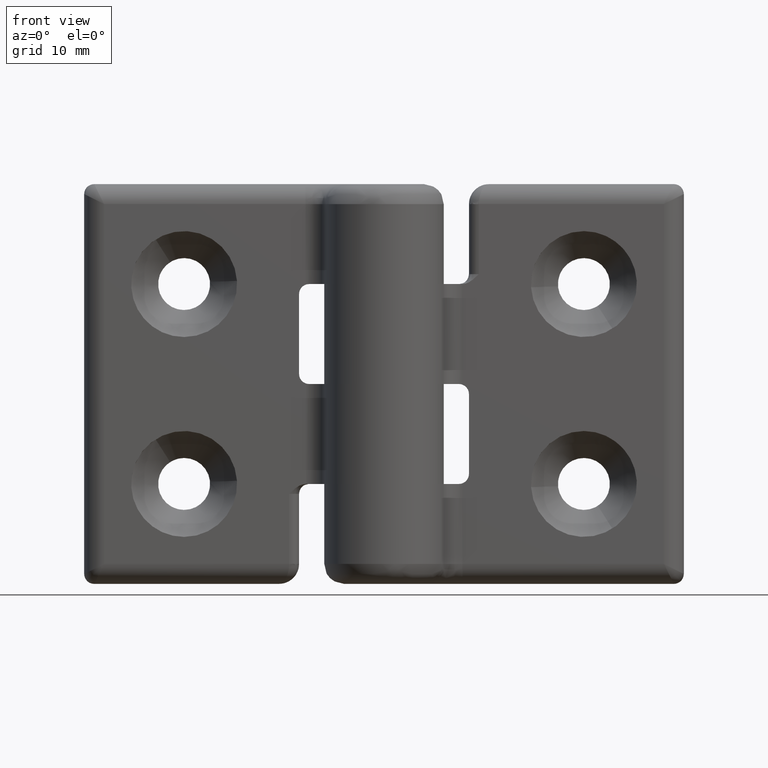
[diagram: clean part render]
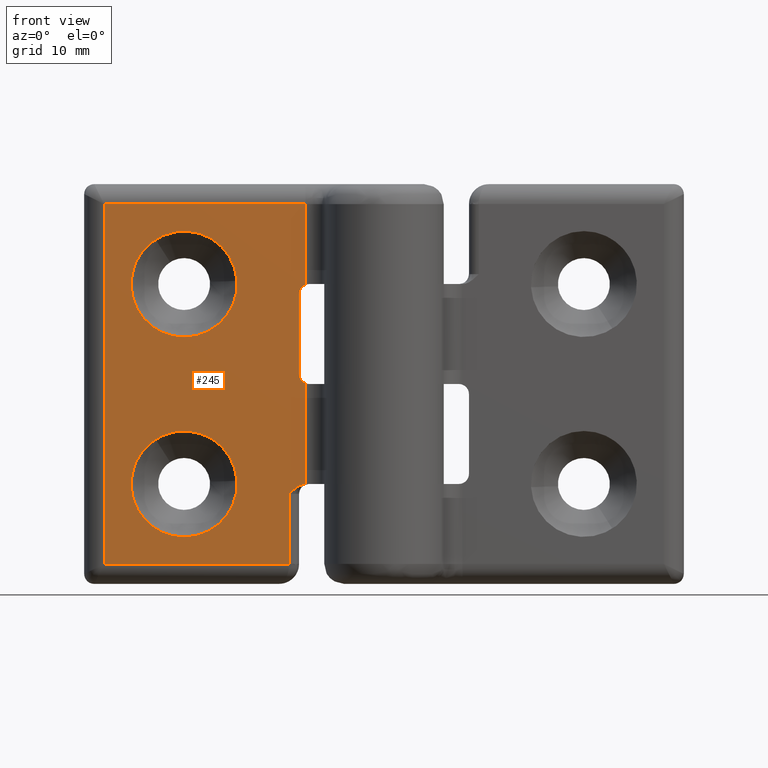
[diagram: same view with one face highlighted and labeled with its STEP entity id]
A machine part, front view. The second image highlights one B-rep face of the part: STEP entity #245.
In plain terms, the highlighted planar face has unit normal (0, -1, 0).
Its self-contained STEP definition (entity closure, byte-faithful):
#245=ADVANCED_FACE('',(#1053,#1054,#1055),#1052,.T.);
#1052=PLANE('',#1882);
#1053=FACE_OUTER_BOUND('',#1883,.T.);
#1054=FACE_BOUND('',#1884,.T.);
#1055=FACE_BOUND('',#1885,.T.);
#1879=CARTESIAN_POINT('',(5.84392850503E+00,5.00000000000E-01,4.16000000000E+01));
#1880=DIRECTION('',(0.00000000000E+00,-1.00000000000E+00,0.00000000000E+00));
#1881=DIRECTION('',(0.00000000000E+00,0.00000000000E+00,-1.00000000000E+00));
#1882=AXIS2_PLACEMENT_3D('',#1879,#1880,#1881);
#1883=EDGE_LOOP('',(#2388,#2389,#2390,#2391,#2392,#2393,#2394,#2395,#2396,#2397));
#1884=EDGE_LOOP('',(#2398,#2399,#2400));
#1885=EDGE_LOOP('',(#2401,#2402,#2403));
#2388=ORIENTED_EDGE('',*,*,#2768,.T.);
#2389=ORIENTED_EDGE('',*,*,#2724,.T.);
#2390=ORIENTED_EDGE('',*,*,#2729,.T.);
#2391=ORIENTED_EDGE('',*,*,#2734,.T.);
#2392=ORIENTED_EDGE('',*,*,#2765,.T.);
#2393=ORIENTED_EDGE('',*,*,#2757,.T.);
#2394=ORIENTED_EDGE('',*,*,#2773,.T.);
#2395=ORIENTED_EDGE('',*,*,#2751,.T.);
#2396=ORIENTED_EDGE('',*,*,#2779,.F.);
#2397=ORIENTED_EDGE('',*,*,#2752,.T.);
#2398=ORIENTED_EDGE('',*,*,#2794,.T.);
#2399=ORIENTED_EDGE('',*,*,#2795,.T.);
#2400=ORIENTED_EDGE('',*,*,#2796,.T.);
#2401=ORIENTED_EDGE('',*,*,#2797,.T.);
#2402=ORIENTED_EDGE('',*,*,#2798,.T.);
#2403=ORIENTED_EDGE('',*,*,#2799,.T.);
#2724=EDGE_CURVE('',#3849,#3876,#3883,.T.);
#2729=EDGE_CURVE('',#3876,#3909,#3916,.T.);
#2734=EDGE_CURVE('',#3909,#3942,#3949,.T.);
#2751=EDGE_CURVE('',#4035,#4056,#4063,.T.);
#2752=EDGE_CURVE('',#4069,#4070,#4071,.T.);
#2757=EDGE_CURVE('',#4104,#4105,#4106,.T.);
#2765=EDGE_CURVE('',#3942,#4104,#4159,.T.);
#2768=EDGE_CURVE('',#4070,#3849,#4178,.T.);
#2773=EDGE_CURVE('',#4105,#4035,#4210,.T.);
#2779=EDGE_CURVE('',#4069,#4056,#4248,.T.);
#2794=EDGE_CURVE('',#4346,#4347,#4348,.T.);
#2795=EDGE_CURVE('',#4347,#4354,#4355,.T.);
#2796=EDGE_CURVE('',#4354,#4346,#4361,.T.);
#2797=EDGE_CURVE('',#4367,#4368,#4369,.T.);
#2798=EDGE_CURVE('',#4368,#4375,#4376,.T.);
#2799=EDGE_CURVE('',#4375,#4367,#4382,.T.);
#3849=VERTEX_POINT('',#5220);
#3876=VERTEX_POINT('',#5239);
#3883=LINE('',#5243,#5244);
#3909=VERTEX_POINT('',#5258);
#3916=LINE('',#5264,#5265);
#3942=VERTEX_POINT('',#5279);
#3949=LINE('',#5285,#5286);
#4035=VERTEX_POINT('',#5338);
#4056=VERTEX_POINT('',#5356);
#4063=CIRCLE('',#5363,1.00000000000E+00);
#4069=VERTEX_POINT('',#5364);
#4070=VERTEX_POINT('',#5365);
#4071=CIRCLE('',#5369,1.00000000000E+00);
#4104=VERTEX_POINT('',#5391);
#4105=VERTEX_POINT('',#5392);
#4106=(BOUNDED_CURVE() B_SPLINE_CURVE(3,(#5393,#5394,#5395,#5396,#5397,#5398,#5399,#5400,#5401,#5402,#5403,#5404,#5405,#5406,#5407,#5408,#5409),.UNSPECIFIED.,.F.,.F.) B_SPLINE_CURVE_WITH_KNOTS((4,2,1,2,2,2,2,2,4),(0.00000000000E+00,6.25000000000E-02,1.25000000000E-01,2.50000000000E-01,5.00000000000E-01,6.25000000000E-01,7.50000000000E-01,8.75000000000E-01,1.00000000000E+00),.UNSPECIFIED.) CURVE() GEOMETRIC_REPRESENTATION_ITEM() RATIONAL_B_SPLINE_CURVE((1.00000000000E+00,1.00000000000E+00,1.00000000000E+00,1.00000000000E+00,1.00000000000E+00,1.00000000000E+00,1.00000000000E+00,1.00000000000E+00,1.00000000000E+00,1.00000000000E+00,1.00000000000E+00,1.00000000000E+00,1.00000000000E+00,1.00000000000E+00,1.00000000000E+00,1.00000000000E+00,1.00000000000E+00)) REPRESENTATION_ITEM('') );
#4159=LINE('',#5441,#5442);
#4178=LINE('',#5451,#5452);
#4210=LINE('',#5471,#5472);
#4248=LINE('',#5492,#5493);
#4346=VERTEX_POINT('',#5551);
#4347=VERTEX_POINT('',#5552);
#4348=CIRCLE('',#5556,5.30000000049E+00);
#4354=VERTEX_POINT('',#5557);
#4355=CIRCLE('',#5561,5.30000000049E+00);
#4361=CIRCLE('',#5565,5.30000000049E+00);
#4367=VERTEX_POINT('',#5566);
#4368=VERTEX_POINT('',#5567);
#4369=CIRCLE('',#5571,5.30000000049E+00);
#4375=VERTEX_POINT('',#5572);
#4376=CIRCLE('',#5576,5.30000000049E+00);
#4382=CIRCLE('',#5580,5.30000000049E+00);
#5220=CARTESIAN_POINT('',(7.85811682275E+00,5.00000000000E-01,2.00000000000E+00));
#5239=CARTESIAN_POINT('',(2.80000000000E+01,5.00000000000E-01,2.00000000000E+00));
#5243=CARTESIAN_POINT('',(7.85811682275E+00,5.00000000000E-01,2.00000000000E+00));
#5244=VECTOR('',#5245,2.01418831772E+01);
#5245=DIRECTION('',(1.00000000000E+00,0.00000000000E+00,0.00000000000E+00));
#5258=CARTESIAN_POINT('',(2.80000000000E+01,5.00000000000E-01,3.80000000000E+01));
#5264=CARTESIAN_POINT('',(2.80000000000E+01,5.00000000000E-01,2.00000000000E+00));
#5265=VECTOR('',#5266,3.60000000000E+01);
#5266=DIRECTION('',(0.00000000000E+00,0.00000000000E+00,1.00000000000E+00));
#5279=CARTESIAN_POINT('',(9.50000000000E+00,5.00000000000E-01,3.80000000000E+01));
#5285=CARTESIAN_POINT('',(2.80000000000E+01,5.00000000000E-01,3.80000000000E+01));
#5286=VECTOR('',#5287,1.85000000000E+01);
#5287=DIRECTION('',(-1.00000000000E+00,0.00000000000E+00,0.00000000000E+00));
#5338=CARTESIAN_POINT('',(7.85811682275E+00,5.00000000000E-01,1.99336767863E+01));
#5356=CARTESIAN_POINT('',(8.50000000000E+00,5.00000000000E-01,1.90000000000E+01));
#5360=CARTESIAN_POINT('',(7.50000000000E+00,5.00000000000E-01,1.90000000000E+01));
#5361=DIRECTION('',(1.16452780915E-13,1.00000000000E+00,8.00691379277E-14));
#5362=DIRECTION('',(-3.58116822751E-01,1.16462395283E-13,-9.33676786293E-01));
#5363=AXIS2_PLACEMENT_3D('',#5360,#5361,#5362);
#5364=CARTESIAN_POINT('',(8.50000000000E+00,5.00000000000E-01,1.10000000000E+01));
#5365=CARTESIAN_POINT('',(7.85811682275E+00,5.00000000000E-01,1.00663232137E+01));
#5366=CARTESIAN_POINT('',(7.50000000000E+00,5.00000000000E-01,1.10000000000E+01));
#5367=DIRECTION('',(1.16240350678E-13,1.00000000000E+00,-8.00551529641E-14));
#5368=DIRECTION('',(-1.00000000000E+00,1.16240350678E-13,3.19744231092E-14));
#5369=AXIS2_PLACEMENT_3D('',#5366,#5367,#5368);
#5391=CARTESIAN_POINT('',(9.50000000000E+00,5.00000000000E-01,3.10000000000E+01));
#5392=CARTESIAN_POINT('',(7.85811682275E+00,5.00000000000E-01,3.00030122164E+01));
#5393=CARTESIAN_POINT('',(9.50000000000E+00,5.00000000000E-01,3.10000000000E+01));
#5394=CARTESIAN_POINT('',(9.47113588199E+00,5.00000000000E-01,3.09711360264E+01));
#5395=CARTESIAN_POINT('',(9.44200394949E+00,5.00000000000E-01,3.09420039162E+01));
#5396=CARTESIAN_POINT('',(9.38382580234E+00,5.00000000000E-01,3.08841551196E+01));
#5397=CARTESIAN_POINT('',(9.29631907930E+00,5.00000000000E-01,3.07976367281E+01));
#5398=CARTESIAN_POINT('',(9.20737697397E+00,5.00000000000E-01,3.07126454211E+01));
#5399=CARTESIAN_POINT('',(9.02566721858E+00,5.00000000000E-01,3.05467327541E+01));
#5400=CARTESIAN_POINT('',(8.89896371929E+00,5.00000000000E-01,3.04412951735E+01));
#5401=CARTESIAN_POINT('',(8.69772431240E+00,5.00000000000E-01,3.03024122386E+01));
#5402=CARTESIAN_POINT('',(8.62870179747E+00,5.00000000000E-01,3.02592258336E+01));
#5403=CARTESIAN_POINT('',(8.48580937934E+00,5.00000000000E-01,3.01806077626E+01));
#5404=CARTESIAN_POINT('',(8.41173293989E+00,5.00000000000E-01,3.01450778361E+01));
#5405=CARTESIAN_POINT('',(8.25845491519E+00,5.00000000000E-01,3.00840336265E+01));
#5406=CARTESIAN_POINT('',(8.18050260468E+00,5.00000000000E-01,3.00589958408E+01));
#5407=CARTESIAN_POINT('',(8.02164708148E+00,5.00000000000E-01,3.00212432056E+01));
#5408=CARTESIAN_POINT('',(7.94075008985E+00,5.00000000000E-01,3.00085023771E+01));
#5409=CARTESIAN_POINT('',(7.85811682275E+00,5.00000000000E-01,3.00030122164E+01));
#5441=CARTESIAN_POINT('',(9.50000000000E+00,5.00000000000E-01,3.80000000000E+01));
#5442=VECTOR('',#5443,7.00000000000E+00);
#5443=DIRECTION('',(0.00000000000E+00,0.00000000000E+00,-1.00000000000E+00));
#5451=CARTESIAN_POINT('',(7.85811682275E+00,5.00000000000E-01,1.00663232137E+01));
#5452=VECTOR('',#5453,8.06632321371E+00);
#5453=DIRECTION('',(0.00000000000E+00,0.00000000000E+00,-1.00000000000E+00));
#5471=CARTESIAN_POINT('',(7.85811682275E+00,5.00000000000E-01,3.00030122164E+01));
#5472=VECTOR('',#5473,1.00693354301E+01);
#5473=DIRECTION('',(0.00000000000E+00,0.00000000000E+00,-1.00000000000E+00));
#5492=CARTESIAN_POINT('',(8.50000000000E+00,5.00000000000E-01,1.10000000000E+01));
#5493=VECTOR('',#5494,8.00000000000E+00);
#5494=DIRECTION('',(0.00000000000E+00,0.00000000000E+00,1.00000000000E+00));
#5551=CARTESIAN_POINT('',(2.00000000000E+01,5.00000000000E-01,1.53000000009E+01));
#5552=CARTESIAN_POINT('',(2.52900672113E+01,5.00000000000E-01,1.03243283990E+01));
#5553=CARTESIAN_POINT('',(2.00000000005E+01,5.00000000000E-01,1.00000000004E+01));
#5554=DIRECTION('',(0.00000000000E+00,1.00000000000E+00,0.00000000000E+00));
#5555=DIRECTION('',(-8.78363210340E-11,-0.00000000000E+00,1.00000000000E+00));
#5556=AXIS2_PLACEMENT_3D('',#5553,#5554,#5555);
#5557=CARTESIAN_POINT('',(1.47098855681E+01,5.00000000000E-01,9.67644274542E+00));
#5558=CARTESIAN_POINT('',(2.00000000005E+01,5.00000000000E-01,1.00000000004E+01));
#5559=DIRECTION('',(0.00000000000E+00,1.00000000000E+00,0.00000000000E+00));
#5560=DIRECTION('',(-8.78363210340E-11,-0.00000000000E+00,1.00000000000E+00));
#5561=AXIS2_PLACEMENT_3D('',#5558,#5559,#5560);
#5562=CARTESIAN_POINT('',(2.00000000005E+01,5.00000000000E-01,1.00000000004E+01));
#5563=DIRECTION('',(0.00000000000E+00,1.00000000000E+00,0.00000000000E+00));
#5564=DIRECTION('',(-8.78363210340E-11,-0.00000000000E+00,1.00000000000E+00));
#5565=AXIS2_PLACEMENT_3D('',#5562,#5563,#5564);
#5566=CARTESIAN_POINT('',(2.00000000000E+01,5.00000000000E-01,3.53000000009E+01));
#5567=CARTESIAN_POINT('',(2.52900672113E+01,5.00000000000E-01,3.03243283990E+01));
#5568=CARTESIAN_POINT('',(2.00000000005E+01,5.00000000000E-01,3.00000000004E+01));
#5569=DIRECTION('',(0.00000000000E+00,1.00000000000E+00,0.00000000000E+00));
#5570=DIRECTION('',(-8.78363210340E-11,-0.00000000000E+00,1.00000000000E+00));
#5571=AXIS2_PLACEMENT_3D('',#5568,#5569,#5570);
#5572=CARTESIAN_POINT('',(1.47098855681E+01,5.00000000000E-01,2.96764427454E+01));
#5573=CARTESIAN_POINT('',(2.00000000005E+01,5.00000000000E-01,3.00000000004E+01));
#5574=DIRECTION('',(0.00000000000E+00,1.00000000000E+00,0.00000000000E+00));
#5575=DIRECTION('',(-8.78363210340E-11,-0.00000000000E+00,1.00000000000E+00));
#5576=AXIS2_PLACEMENT_3D('',#5573,#5574,#5575);
#5577=CARTESIAN_POINT('',(2.00000000005E+01,5.00000000000E-01,3.00000000004E+01));
#5578=DIRECTION('',(0.00000000000E+00,1.00000000000E+00,0.00000000000E+00));
#5579=DIRECTION('',(-8.78363210340E-11,-0.00000000000E+00,1.00000000000E+00));
#5580=AXIS2_PLACEMENT_3D('',#5577,#5578,#5579);